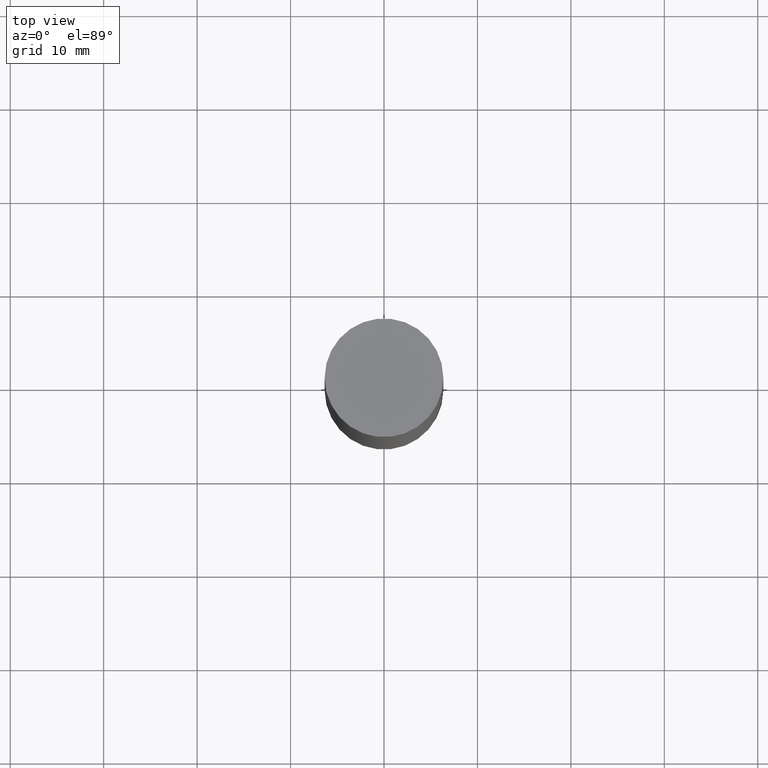
[diagram: clean part render]
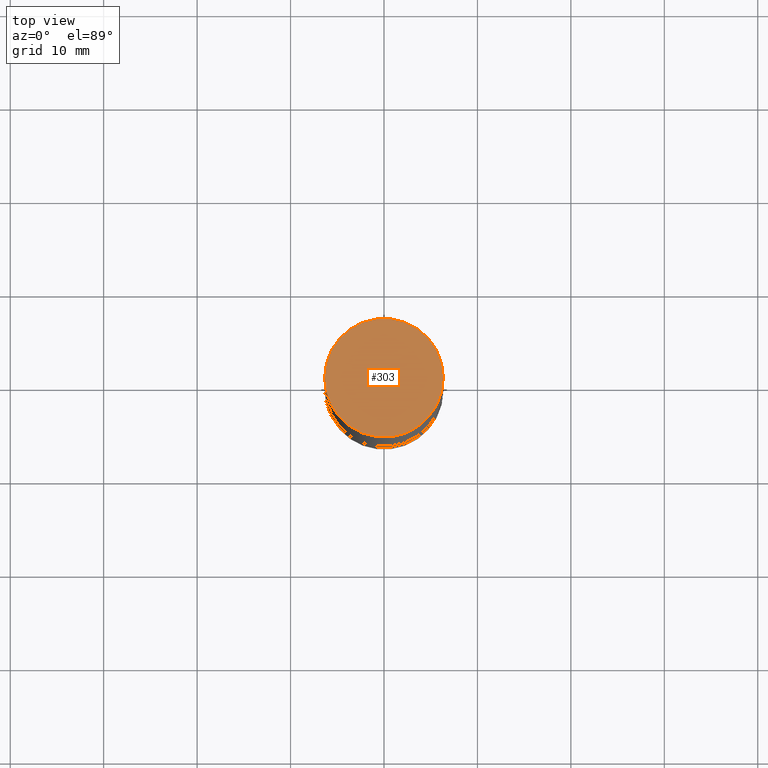
[diagram: same view with one face highlighted and labeled with its STEP entity id]
A machine part, top view. The second image highlights one B-rep face of the part: STEP entity #303.
In plain terms, the highlighted planar face has unit normal (0, 0, 1).
Its self-contained STEP definition (entity closure, byte-faithful):
#15 = VERTEX_POINT ( 'NONE', #109 ) ;
#29 = PLANE ( 'NONE',  #91 ) ;
#91 = AXIS2_PLACEMENT_3D ( 'NONE', #493, #614, #349 ) ;
#109 = CARTESIAN_POINT ( 'NONE',  ( -0.2500000000000000000, 6.257098548958748880E-16, 1.092739197465709232E-15 ) ) ;
#116 = DIRECTION ( 'NONE',  ( 1.000000000000000000, -6.982962677686266711E-15, 0.000000000000000000 ) ) ;
#128 = ORIENTED_EDGE ( 'NONE', *, *, #577, .T. ) ;
#171 = DIRECTION ( 'NONE',  ( 2.445468806185136597E-29, 3.492890411551752677E-15, 1.000000000000000000 ) ) ;
#185 = ORIENTED_EDGE ( 'NONE', *, *, #288, .T. ) ;
#279 = CARTESIAN_POINT ( 'NONE',  ( 7.336406418555409790E-29, 2.113609062914567177E-18, 1.092739197465705287E-15 ) ) ;
#287 = AXIS2_PLACEMENT_3D ( 'NONE', #279, #171, #451 ) ;
#288 = EDGE_CURVE ( 'NONE', #15, #531, #300, .T. ) ;
#300 = CIRCLE ( 'NONE', #287, 0.2500000000000000000 ) ;
#303 = ADVANCED_FACE ( 'NONE', ( #651 ), #29, .T. ) ;
#322 = CARTESIAN_POINT ( 'NONE',  ( 0.2500000000000000000, -1.743627060358652092E-15, 1.092739197465705287E-15 ) ) ;
#349 = DIRECTION ( 'NONE',  ( -1.000000000000000000, 6.982962677686265922E-15, -9.839502134516470631E-33 ) ) ;
#451 = DIRECTION ( 'NONE',  ( 1.000000000000000000, -6.982962677686266711E-15, 0.000000000000000000 ) ) ;
#458 = CIRCLE ( 'NONE', #655, 0.2500000000000000000 ) ;
#493 = CARTESIAN_POINT ( 'NONE',  ( 1.745740669421639647E-15, 0.2500000000000000000, 5.463695987328526437E-16 ) ) ;
#526 = CARTESIAN_POINT ( 'NONE',  ( 7.336406418555409790E-29, 2.113609062914567177E-18, 1.092739197465705287E-15 ) ) ;
#531 = VERTEX_POINT ( 'NONE', #322 ) ;
#537 = EDGE_LOOP ( 'NONE', ( #128, #185 ) ) ;
#577 = EDGE_CURVE ( 'NONE', #531, #15, #458, .T. ) ;
#578 = DIRECTION ( 'NONE',  ( 2.445468806185136597E-29, 3.492890411551752677E-15, 1.000000000000000000 ) ) ;
#614 = DIRECTION ( 'NONE',  ( 2.438088387897959769E-29, 3.492890411551753071E-15, 1.000000000000000000 ) ) ;
#651 = FACE_OUTER_BOUND ( 'NONE', #537, .T. ) ;
#655 = AXIS2_PLACEMENT_3D ( 'NONE', #526, #578, #116 ) ;